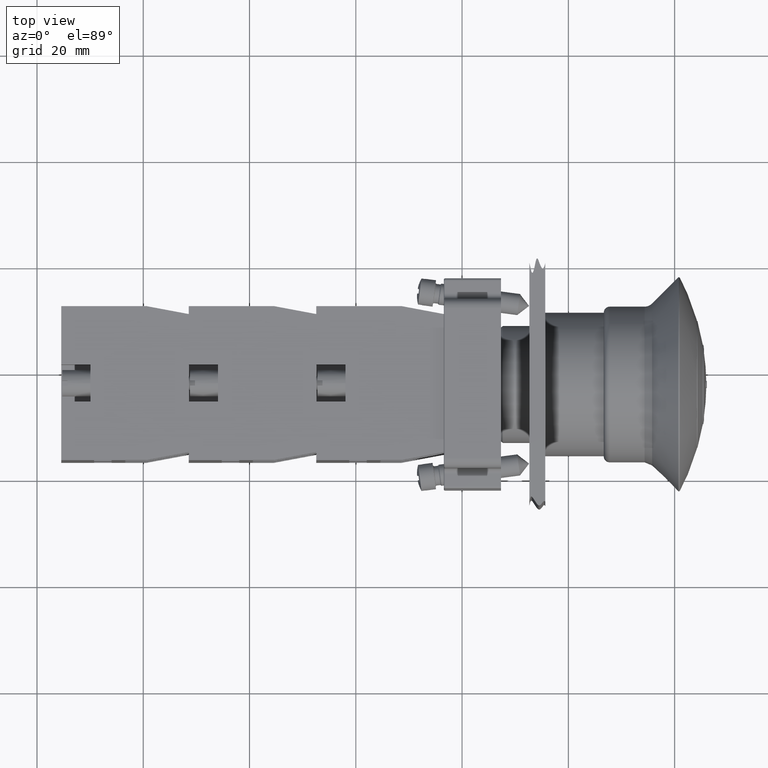
[diagram: clean part render]
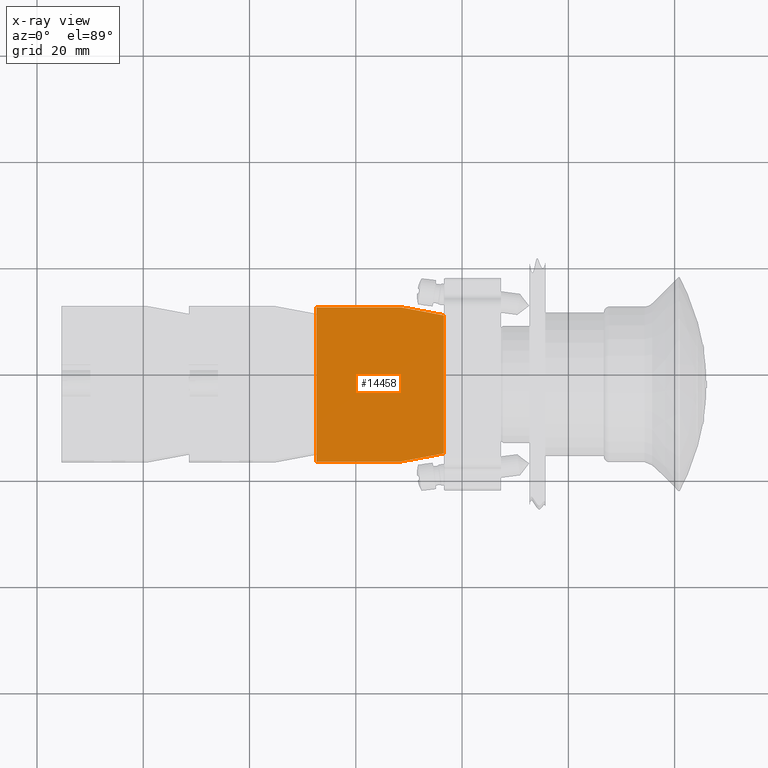
[diagram: x-ray — body ghosted, one internal face saturated and labeled with its STEP entity id]
A machine part, top view, then the same camera in x-ray: the body is ghosted and one INTERNAL B-rep face — a face not visible from any outside direction — is saturated and labeled: STEP entity #14458.
In plain terms, the highlighted planar face has unit normal (0, -0, 1).
Its self-contained STEP definition (entity closure, byte-faithful):
#12763=CARTESIAN_POINT('',(-44.936741828918471,23.797073323279623,0.0));
#12764=VERTEX_POINT('',#12763);
#12771=CARTESIAN_POINT('',(-44.936741828918457,7.797073323279626,0.0));
#12772=VERTEX_POINT('',#12771);
#12773=CARTESIAN_POINT('',(-44.936741828918457,7.797073323279626,0.0));
#12774=DIRECTION('',(0.0,1.0,0.0));
#12775=VECTOR('',#12774,15.999999999999996);
#12776=LINE('',#12773,#12775);
#12777=EDGE_CURVE('',#12772,#12764,#12776,.T.);
#12954=CARTESIAN_POINT('',(-43.436741828918457,-0.202926676720380,0.0));
#12955=VERTEX_POINT('',#12954);
#12962=CARTESIAN_POINT('',(-17.436741828918457,-0.202926676720377,0.0));
#12963=VERTEX_POINT('',#12962);
#12964=CARTESIAN_POINT('',(-17.436741828918457,-0.202926676720377,0.0));
#12965=DIRECTION('',(-1.0,0.0,0.0));
#12966=VECTOR('',#12965,26.0);
#12967=LINE('',#12964,#12966);
#12968=EDGE_CURVE('',#12963,#12955,#12967,.T.);
#14312=CARTESIAN_POINT('',(-15.936741828918466,23.797073323279626,0.0));
#14313=VERTEX_POINT('',#14312);
#14320=CARTESIAN_POINT('',(-44.936741828918471,23.797073323279623,0.0));
#14321=DIRECTION('',(1.0,0.0,0.0));
#14322=VECTOR('',#14321,29.000000000000007);
#14323=LINE('',#14320,#14322);
#14324=EDGE_CURVE('',#12764,#14313,#14323,.T.);
#14360=CARTESIAN_POINT('',(-15.936741828918466,7.797073323279626,0.0));
#14361=VERTEX_POINT('',#14360);
#14368=CARTESIAN_POINT('',(-15.936741828918466,23.797073323279626,0.0));
#14369=DIRECTION('',(0.0,-1.0,0.0));
#14370=VECTOR('',#14369,16.0);
#14371=LINE('',#14368,#14370);
#14372=EDGE_CURVE('',#14313,#14361,#14371,.T.);
#14400=CARTESIAN_POINT('',(-15.936741828918466,7.797073323279626,0.0));
#14401=DIRECTION('',(-0.184288535050184,-0.982872186934322,0.0));
#14402=VECTOR('',#14401,8.139410298049855);
#14403=LINE('',#14400,#14402);
#14404=EDGE_CURVE('',#14361,#12963,#14403,.T.);
#14417=CARTESIAN_POINT('',(-43.436741828918457,-0.202926676720380,0.0));
#14418=DIRECTION('',(-0.184288535050185,0.982872186934322,0.0));
#14419=VECTOR('',#14418,8.139410298049860);
#14420=LINE('',#14417,#14419);
#14421=EDGE_CURVE('',#12955,#12772,#14420,.T.);
#14445=CARTESIAN_POINT('',(-30.436741828918464,12.124046801833057,0.0));
#14446=DIRECTION('',(0.0,0.0,1.0));
#14447=DIRECTION('',(1.0,0.0,0.0));
#14448=AXIS2_PLACEMENT_3D('',#14445,#14446,#14447);
#14449=PLANE('',#14448);
#14450=ORIENTED_EDGE('',*,*,#14324,.T.);
#14451=ORIENTED_EDGE('',*,*,#14372,.T.);
#14452=ORIENTED_EDGE('',*,*,#14404,.T.);
#14453=ORIENTED_EDGE('',*,*,#12968,.T.);
#14454=ORIENTED_EDGE('',*,*,#14421,.T.);
#14455=ORIENTED_EDGE('',*,*,#12777,.T.);
#14456=EDGE_LOOP('',(#14450,#14451,#14452,#14453,#14454,#14455));
#14457=FACE_OUTER_BOUND('',#14456,.T.);
#14458=ADVANCED_FACE('',(#14457),#14449,.F.);